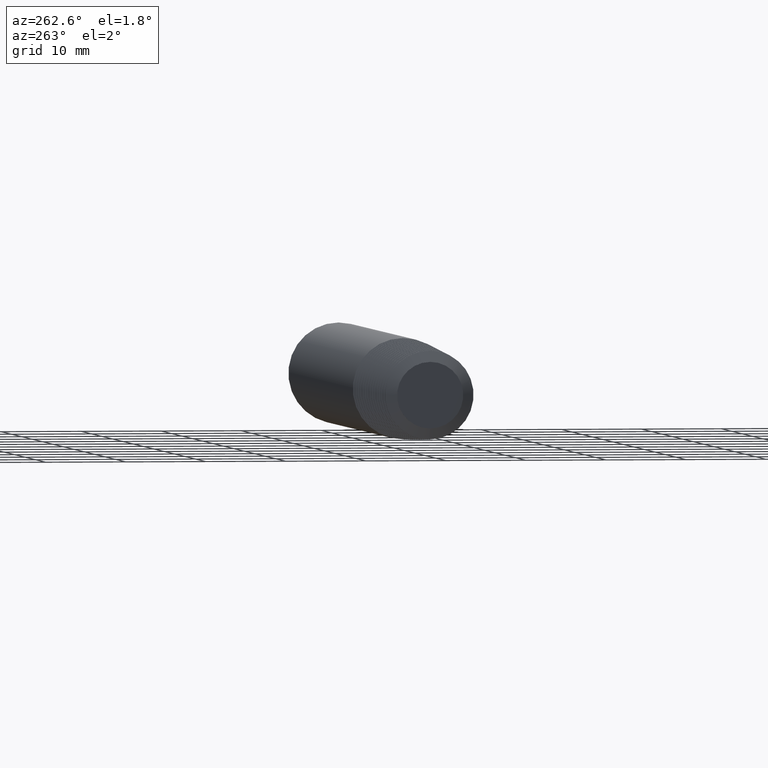
[diagram: clean part render]
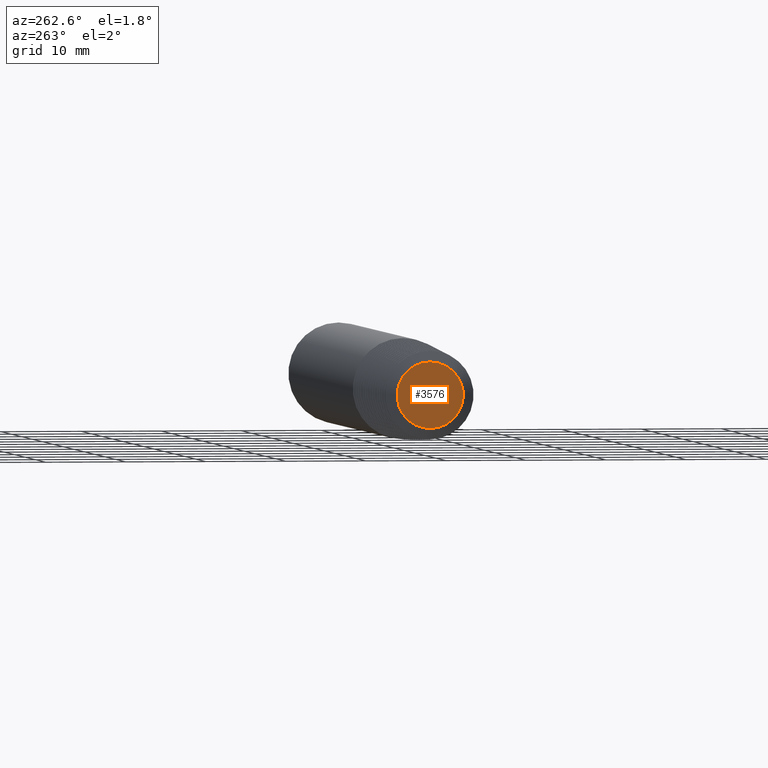
[diagram: same view with one face highlighted and labeled with its STEP entity id]
A machine part, auxiliary view. The second image highlights one B-rep face of the part: STEP entity #3576.
In plain terms, the highlighted planar face has unit normal (1, 0, 0).
Its self-contained STEP definition (entity closure, byte-faithful):
#131 = VERTEX_POINT ( 'NONE', #2143 ) ;
#440 = CARTESIAN_POINT ( 'NONE',  ( -0.9749999999999999778, 1.991275495599353586E-17, 0.1625722019953906583 ) ) ;
#752 = DIRECTION ( 'NONE',  ( 0.000000000000000000, 0.000000000000000000, -1.000000000000000000 ) ) ;
#754 = EDGE_CURVE ( 'NONE', #131, #3566, #2382, .T. ) ;
#1026 = AXIS2_PLACEMENT_3D ( 'NONE', #1158, #1771, #1174 ) ;
#1123 = EDGE_CURVE ( 'NONE', #3566, #131, #2547, .T. ) ;
#1158 = CARTESIAN_POINT ( 'NONE',  ( -0.9749999999999999778, 0.000000000000000000, 0.000000000000000000 ) ) ;
#1174 = DIRECTION ( 'NONE',  ( 0.000000000000000000, 0.000000000000000000, -1.000000000000000000 ) ) ;
#1343 = AXIS2_PLACEMENT_3D ( 'NONE', #2728, #3317, #752 ) ;
#1590 = PLANE ( 'NONE',  #1343 ) ;
#1771 = DIRECTION ( 'NONE',  ( -1.000000000000000000, -0.000000000000000000, -0.000000000000000000 ) ) ;
#2143 = CARTESIAN_POINT ( 'NONE',  ( -0.9749999999999999778, 0.000000000000000000, -0.1625722019953906583 ) ) ;
#2159 = FACE_OUTER_BOUND ( 'NONE', #2284, .T. ) ;
#2284 = EDGE_LOOP ( 'NONE', ( #3103, #3205 ) ) ;
#2382 = CIRCLE ( 'NONE', #3357, 0.1625722019953906583 ) ;
#2475 = DIRECTION ( 'NONE',  ( -1.000000000000000000, -0.000000000000000000, -0.000000000000000000 ) ) ;
#2547 = CIRCLE ( 'NONE', #1026, 0.1625722019953906583 ) ;
#2728 = CARTESIAN_POINT ( 'NONE',  ( -0.9749999999999999778, 0.000000000000000000, 0.000000000000000000 ) ) ;
#3103 = ORIENTED_EDGE ( 'NONE', *, *, #754, .T. ) ;
#3205 = ORIENTED_EDGE ( 'NONE', *, *, #1123, .T. ) ;
#3286 = DIRECTION ( 'NONE',  ( 0.000000000000000000, 0.000000000000000000, -1.000000000000000000 ) ) ;
#3317 = DIRECTION ( 'NONE',  ( 1.000000000000000000, 0.000000000000000000, 0.000000000000000000 ) ) ;
#3357 = AXIS2_PLACEMENT_3D ( 'NONE', #3583, #2475, #3286 ) ;
#3566 = VERTEX_POINT ( 'NONE', #440 ) ;
#3576 = ADVANCED_FACE ( 'NONE', ( #2159 ), #1590, .F. ) ;
#3583 = CARTESIAN_POINT ( 'NONE',  ( -0.9749999999999999778, 0.000000000000000000, 0.000000000000000000 ) ) ;